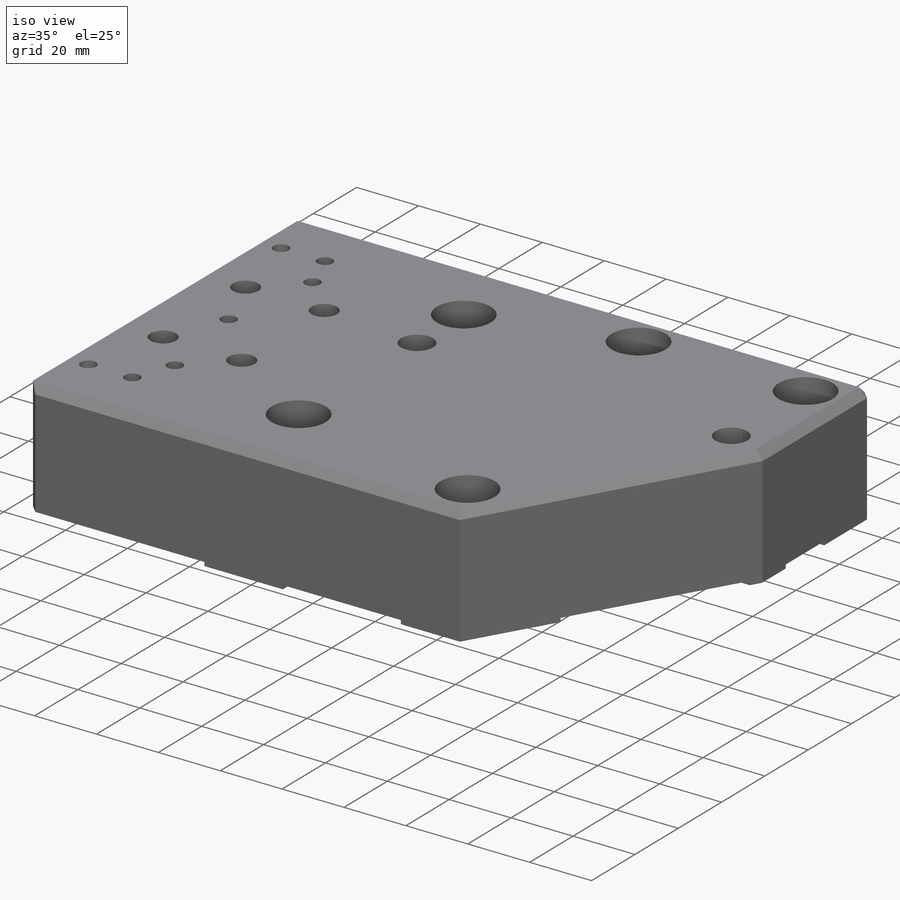
[diagram: iso view]
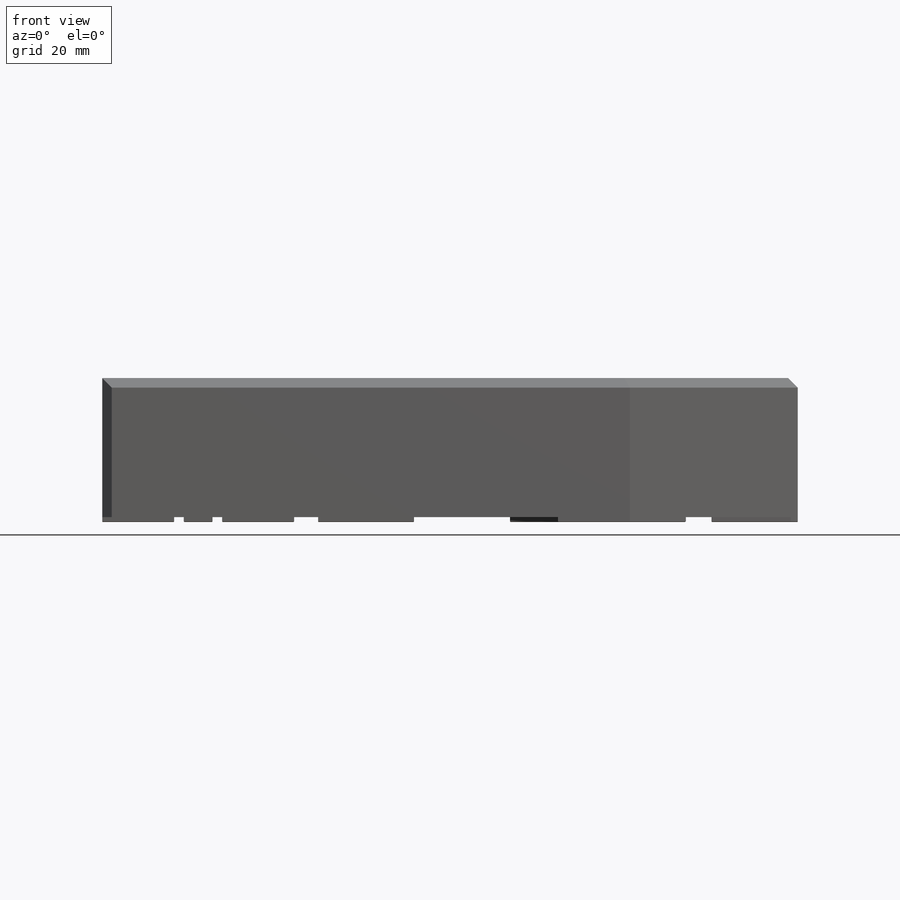
[diagram: front view]
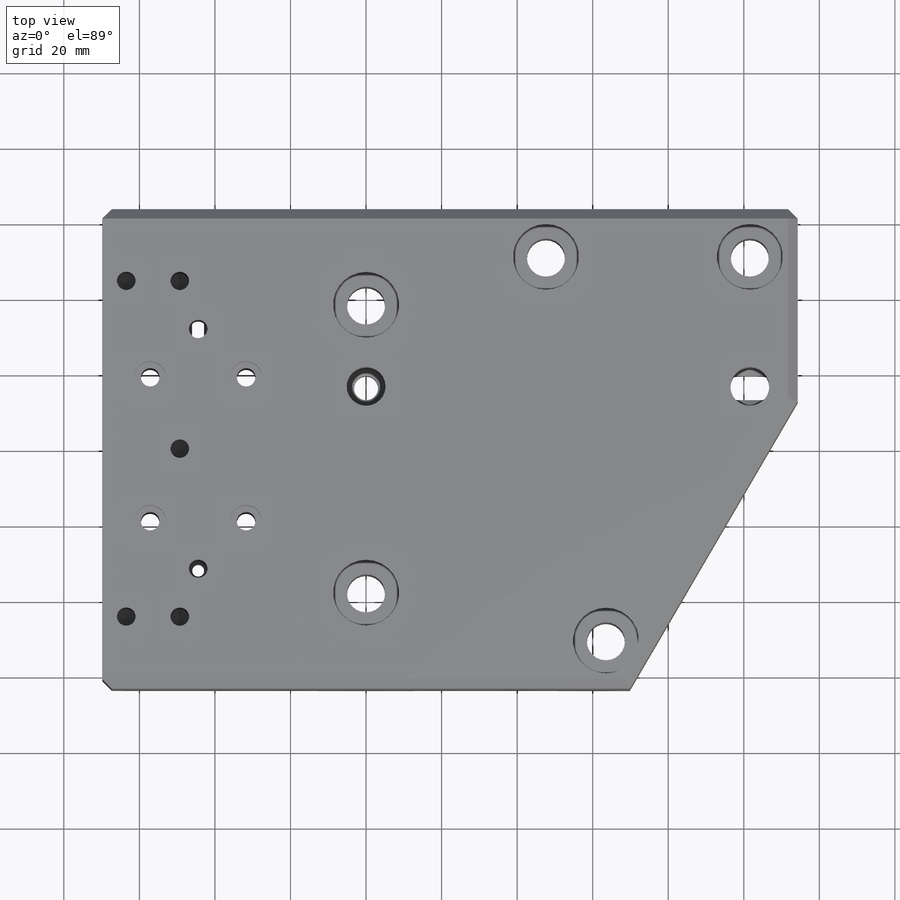
[diagram: top view]
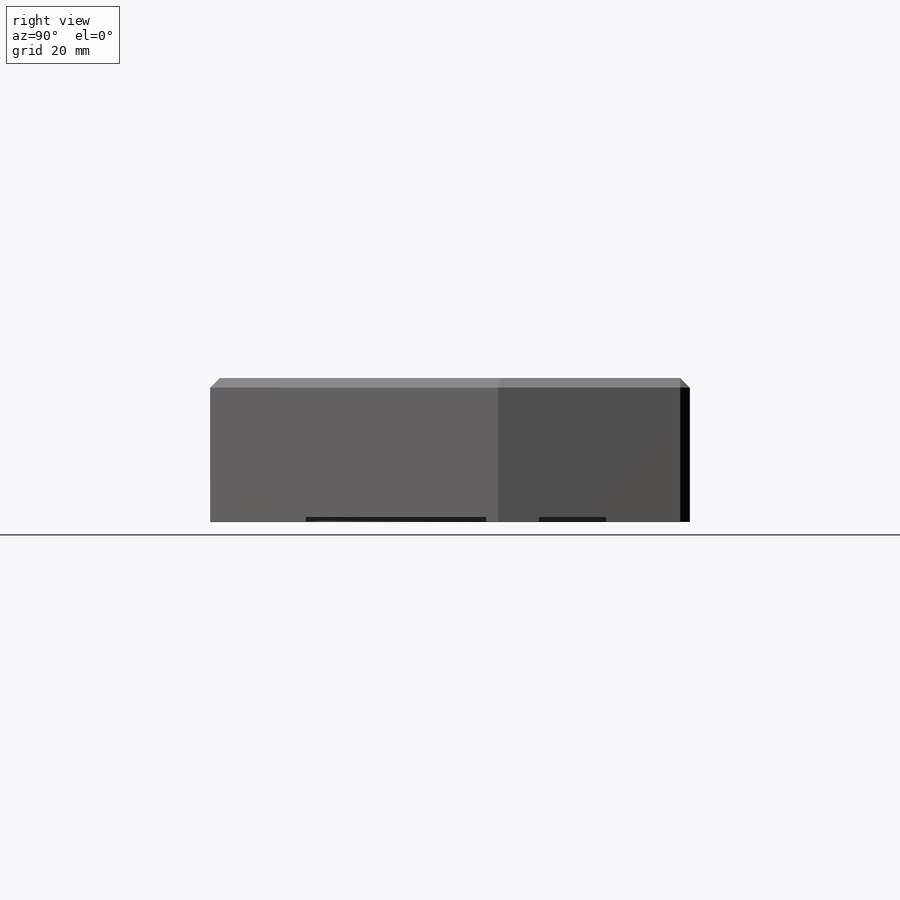
[diagram: right view]
SOLIDWORKS PART (.sldprt)
format: sldprt  version: not decoded by parser v0  size: 930,816 bytes
history: native  units: mm
features: sketch x19, hole x7, cut_extrude x4, chamfer x4, material x1, extrude x1 + 1 further entry (+13 scaffold rows collapsed)
feature tree (50):
  scaffold x13  (default folders/planes/origin — collapsed)
  material  "6061-T6 Al"
  "Origin"  ID=-1
  sketch  "Sketch1"  dims[c1.D1=~120.807339mm c1.D2=~146.519712mm c2.D1=127.0mm c2.D2=139.7mm c2.D3=69.85mm c2.D4=63.5mm c2.D5=114.3mm c2.D6=50.8mm c3.D5=184.15mm]
  extrude  "Extrude1"  Depth=38.1mm
  sketch  "Sketch2"  dims[c1.D1=~3.19024mm c1.D3=3.1877mm c1.D5=3.1877mm c2.D1=3.175mm c2.D2=3.175mm c2.D3=44.45mm c2.D4=44.45mm c2.D5=63.5mm c2.D6=31.75mm c2.D7=3.175mm c3.D3=31.75mm]
  cut_extrude  "Pin & Slot holes to Magnet block"  Depth=6.35mm
  sketch  "Sketch3"  dims[c1.D20=3.175mm c1.D24=3.175mm c1.D1=57.15mm c1.D2=19.05mm c1.D3=25.4mm c1.D4=19.05mm c1.D5=19.05mm c1.D6=19.05mm c1.D7=9.525mm c1.D8=19.05mm c1.D9=7.62mm c1.D10=28.575mm c1.D11=14.2875mm c1.D12=50.8mm c1.D13=22.225mm c1.D14=27.94mm c1.D15=11.43mm c1.D16=26.035mm c1.D17=79.375mm c1.D18=38.1mm c1.D19=19.05mm c2.D20=19.05mm c2.D3=19.05mm c2.D4=19.05mm c2.D19=88.9mm c2.D2=25.4mm c3.D3=38.1mm c3.D4=79.375mm c3.D5=~16.025575mm c3.D6=~16.073957mm c4.D5=20.32mm c4.D6=9.525mm c4.D19=13.97mm c4.D20=92.075mm c4.D21=19.05mm c4.D22=38.1mm c4.D13=40.64mm c4.D8=50.8mm c4.D23=12.7mm c4.D3=50.8mm c4.D4=91.44mm c4.D17=41.275mm c4.D10=14.2875mm c5.D20=3.175mm c5.D24=3.81mm]
  cut_extrude  "Extrude3"  Depth=1.27mm
  hole  "Tapped Hole for 1/4-20 Helicoil1"  Diameter=6.7564mm Depth=20.5232mm
  sketch  "Sketch9"  dims[D1=8.255mm D2=30.48mm D3=44.45mm D4=88.9mm]
  sketch  "Sketch8"  dims[hole-wizard template sketch: 27 standard entries collapsed; hole parameters kept: c8.Tap Drill Depth=20.5232mm c8.Thread Major Dia.=~8.09498mm c8.Thread Depth=11.6586mm c8.Near C'Sink Dia.=8.89mm c8.D6=~4.399409mm c8.Near C'Sink Angle=90.0deg c8.D7=~14.816244mm c8.Drill Angle=118.0deg]
  sketch  "Sketch13"  dims[c1.D1=~3.758196mm c1.D2=~6.35508mm c1.D3=~6.36016mm c1.D6=~3.17754mm c2.D1=~6.35508mm c2.D3=16.51mm c2.D4=6.35mm c2.D5=101.6mm]
  cut_extrude  "Pin & Slot holes to Stage2"  Depth=12.7mm
  hole  "3/8 Clearance Hole1"  Diameter=10.31748mm Depth=25.4mm
  sketch  "Sketch15"  dims[D1=~6.36016mm]
  sketch  "Sketch14"  dims[hole-wizard template sketch: 46 standard entries collapsed; hole parameters kept: c15.Hole Dia.=~10.31748mm c15.Hole Depth=25.4mm c15.D3=~14.816244mm c15.Drill Angle=118.0deg]
  sketch  "Sketch16"  dims[c1.D1=~1.58623mm c1.D3=~3.19024mm c1.D7=6.7564mm c1.D4=~8.09498mm c2.D1=~3.18008mm c2.D2=3.175mm c2.D4=88.9mm c2.D5=44.45mm c2.D6=16.51mm c2.D7=8.255mm c3.D4=8.255mm]
  cut_extrude  "Pin & Slot holes, tooling btacket"  Depth=6.35mm
  hole  "#8 Clearance Hole1"  Diameter=4.9149mm Depth=31.75mm
  sketch  "Sketch12"  dims[D1=31.75mm]
  sketch  "Sketch11"  dims[hole-wizard template sketch: 47 standard entries collapsed; hole parameters kept: c15.Hole Depth=31.75mm c15.D3=~14.816244mm c15.Drill Angle=118.0deg]
  hole  "#8 Clearance Hole2"  Diameter=4.9149mm Depth=22.86mm
  sketch  "Sketch18"
  sketch  "Sketch17"  dims[hole-wizard template sketch: 47 standard entries collapsed; hole parameters kept: c15.Hole Depth=22.86mm c15.D3=~14.816244mm c15.Drill Angle=118.0deg]
  hole  "#8 Clearance Hole3"  Diameter=4.9149mm Depth=10.16mm
  sketch  "Sketch20"
  sketch  "Sketch19"  dims[hole-wizard template sketch: 47 standard entries collapsed; hole parameters kept: c15.Hole Depth=10.16mm c15.D3=~14.816244mm c15.Drill Angle=118.0deg]
  hole  "CBORE for 3/8 Socket Head Cap Screw1"  Diameter=10.0838mm Depth=38.1mm
  sketch  "Sketch7"  dims[c1.D1=63.5mm c1.D2=101.6mm c1.D3=0.0mm c1.D4=38.1mm c1.D5=76.2mm c1.D6=101.6mm c1.D7=50.8mm c2.D1=63.5mm c2.D2=101.6mm c2.D8=47.625mm c2.D3=38.1mm c2.D5=50.8mm]
  sketch  "Sketch6"  dims[hole-wizard template sketch: 42 standard entries collapsed; hole parameters kept: c12.Thru Hole Depth=38.1mm c12.C'Bore Dia.=17.4625mm c12.C'Bore Depth=9.525mm]
  hole  "CBORE for #8 Socket Head Cap Screw1"  Diameter=4.9149mm Depth=38.1mm
  sketch  "Sketch5"  dims[D1=25.4mm D2=38.1mm D3=12.7mm D4=19.05mm]
  sketch  "Sketch4"  dims[hole-wizard template sketch: 42 standard entries collapsed; hole parameters kept: c12.Thru Hole Depth=38.1mm c12.C'Bore Dia.=8.255mm c12.C'Bore Depth=5.842mm]
  chamfer  "Chamfer2"  Distance=2.286mm Angle=45deg
  chamfer  "Chamfer1"  Distance=2.54mm Angle=45deg
  chamfer  "Chamfer3"  Distance=0.127mm Angle=45deg
  chamfer  "Chamfer4"  Distance=0.762mm Angle=45deg
decode coverage: 33 of 35 modeling features carry decoded parameters; 1 rows unclassified (native names shown)
note: ~ marks probable driven/reference dimensions
summary: Diameter pulled from absorbed wizard sketch
note: suppression state not decoded; provenance and decode notes live in map.json
